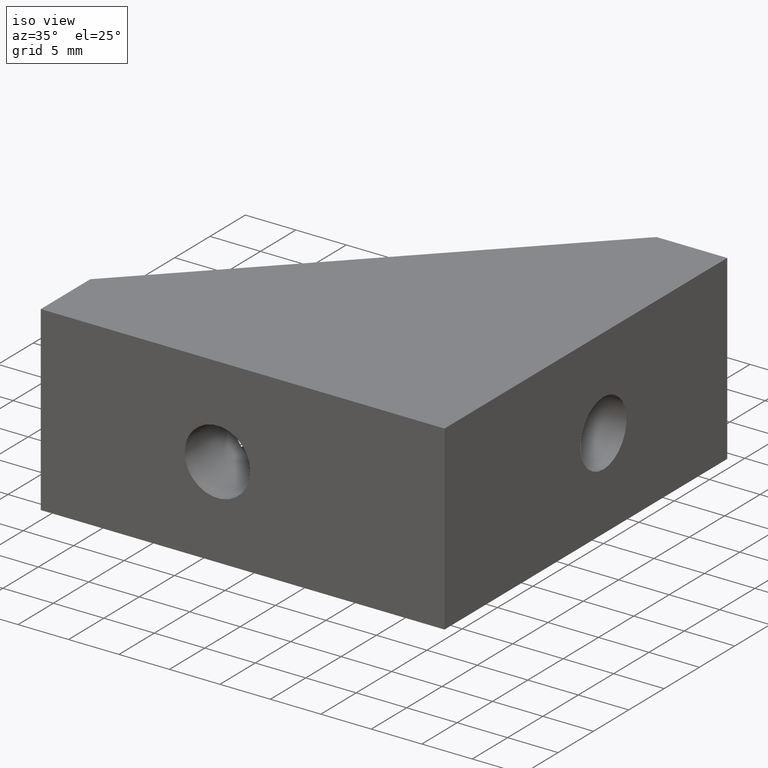
[diagram: clean part render]
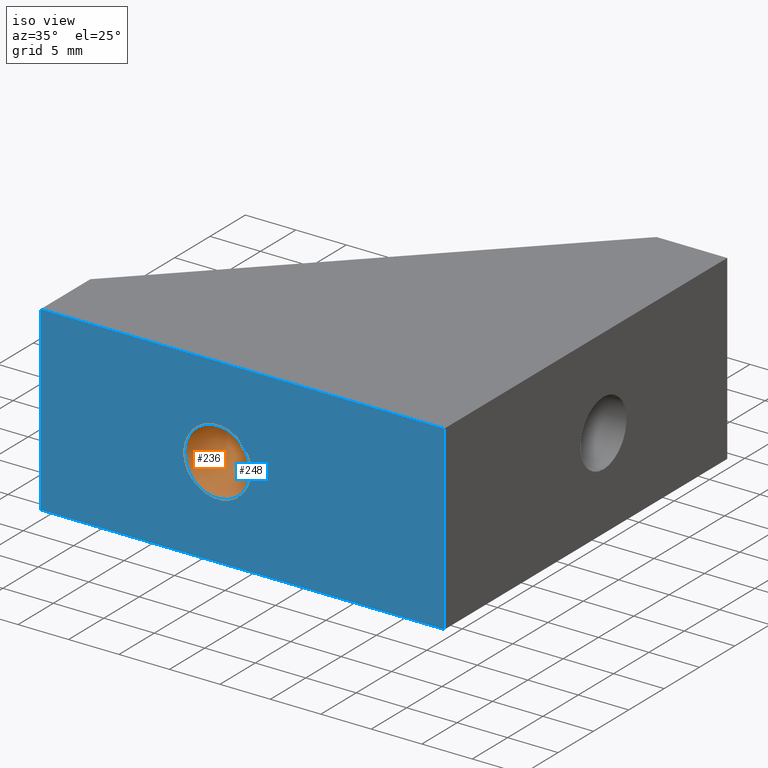
[diagram: same view with the hole feature highlighted: cylindrical wall and planar end face, labeled with their STEP entity ids]
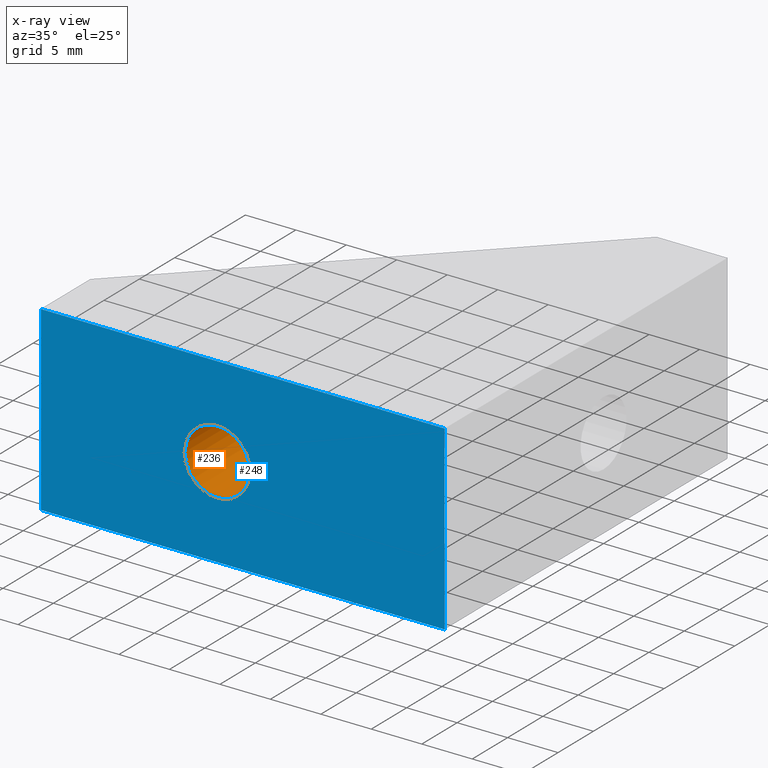
[diagram: x-ray of the same camera — body ghosted, the hole faces saturated]
A machine part, iso view. The highlighted faces form one hole feature of diameter 6.5 mm: the cylindrical wall (entity #236, orange) and its adjacent planar end face (entity #248, blue) — they share a circular edge in the B-rep.
The next image is the same camera in x-ray (body ghosted, the hole faces saturated) — the bore reads through the body.
Wall:
#80=FACE_BOUND('',#102,.T.);
#86=FACE_OUTER_BOUND('',#101,.T.);
#101=EDGE_LOOP('',(#175));
#102=EDGE_LOOP('',(#176));
#121=CIRCLE('',#255,3.25);
#122=CIRCLE('',#256,3.25);
#125=VERTEX_POINT('',#340);
#126=VERTEX_POINT('',#342);
#145=EDGE_CURVE('',#125,#125,#121,.T.);
#146=EDGE_CURVE('',#126,#126,#122,.T.);
#175=ORIENTED_EDGE('',*,*,#145,.F.);
#176=ORIENTED_EDGE('',*,*,#146,.F.);
#234=CYLINDRICAL_SURFACE('',#254,3.25);
#236=ADVANCED_FACE('',(#86,#80),#234,.F.);
#254=AXIS2_PLACEMENT_3D('',#339,#277,#278);
#255=AXIS2_PLACEMENT_3D('',#341,#279,#280);
#256=AXIS2_PLACEMENT_3D('',#343,#281,#282);
#277=DIRECTION('center_axis',(0.,1.,0.));
#278=DIRECTION('ref_axis',(-1.,0.,0.));
#279=DIRECTION('center_axis',(0.,-1.,0.));
#280=DIRECTION('ref_axis',(-1.,0.,0.));
#281=DIRECTION('center_axis',(0.,1.,0.));
#282=DIRECTION('ref_axis',(-1.,0.,0.));
#339=CARTESIAN_POINT('Origin',(-22.4999999999268,-22.49999999991,3.59245966308208E-11));
#340=CARTESIAN_POINT('',(-19.2499999999268,-15.49999999991,3.59249946410305E-11));
#341=CARTESIAN_POINT('Origin',(-22.4999999999268,-15.49999999991,3.59245966308208E-11));
#342=CARTESIAN_POINT('',(-19.2499999999268,-22.49999999991,3.59249946410305E-11));
#343=CARTESIAN_POINT('Origin',(-22.4999999999268,-22.49999999991,3.59245966308208E-11));
End face:
#27=LINE('',#371,#53);
#37=LINE('',#390,#63);
#38=LINE('',#392,#64);
#40=LINE('',#396,#66);
#53=VECTOR('',#305,39.9999999998399);
#63=VECTOR('',#321,39.9999999998399);
#64=VECTOR('',#324,18.);
#66=VECTOR('',#330,18.);
#78=PLANE('',#268);
#84=FACE_BOUND('',#118,.T.);
#98=FACE_OUTER_BOUND('',#117,.T.);
#117=EDGE_LOOP('',(#228,#229,#230,#231));
#118=EDGE_LOOP('',(#232));
#122=CIRCLE('',#256,3.25);
#126=VERTEX_POINT('',#342);
#135=VERTEX_POINT('',#368);
#136=VERTEX_POINT('',#370);
#140=VERTEX_POINT('',#384);
#142=VERTEX_POINT('',#388);
#146=EDGE_CURVE('',#126,#126,#122,.T.);
#159=EDGE_CURVE('',#135,#136,#27,.T.);
#169=EDGE_CURVE('',#140,#142,#37,.T.);
#170=EDGE_CURVE('',#142,#136,#38,.T.);
#172=EDGE_CURVE('',#140,#135,#40,.T.);
#228=ORIENTED_EDGE('',*,*,#169,.T.);
#229=ORIENTED_EDGE('',*,*,#170,.T.);
#230=ORIENTED_EDGE('',*,*,#159,.F.);
#231=ORIENTED_EDGE('',*,*,#172,.F.);
#232=ORIENTED_EDGE('',*,*,#146,.T.);
#248=ADVANCED_FACE('',(#98,#84),#78,.T.);
#256=AXIS2_PLACEMENT_3D('',#343,#281,#282);
#268=AXIS2_PLACEMENT_3D('',#397,#331,#332);
#281=DIRECTION('center_axis',(0.,1.,0.));
#282=DIRECTION('ref_axis',(-1.,0.,0.));
#305=DIRECTION('',(1.,0.,0.));
#321=DIRECTION('',(1.,0.,0.));
#324=DIRECTION('',(0.,0.,1.));
#330=DIRECTION('',(0.,0.,1.));
#331=DIRECTION('center_axis',(0.,-1.,0.));
#332=DIRECTION('ref_axis',(0.,0.,-1.));
#342=CARTESIAN_POINT('',(-19.2499999999268,-22.49999999991,3.59249946410305E-11));
#343=CARTESIAN_POINT('Origin',(-22.4999999999268,-22.49999999991,3.59245966308208E-11));
#368=CARTESIAN_POINT('',(-39.9999999998399,-22.49999999991,9.00000000003593));
#370=CARTESIAN_POINT('',(0.,-22.49999999991,9.00000000003593));
#371=CARTESIAN_POINT('',(-39.9999999998399,-22.49999999991,9.00000000003593));
#384=CARTESIAN_POINT('',(-39.9999999998399,-22.49999999991,-8.99999999996408));
#388=CARTESIAN_POINT('',(0.,-22.49999999991,-8.99999999996408));
#390=CARTESIAN_POINT('',(-39.9999999998399,-22.49999999991,-8.99999999996408));
#392=CARTESIAN_POINT('',(0.,-22.49999999991,-8.99999999996408));
#396=CARTESIAN_POINT('',(-39.9999999998399,-22.49999999991,-8.99999999996408));
#397=CARTESIAN_POINT('Origin',(-40.0000433069272,-22.49999999991,-9.00004330705133));